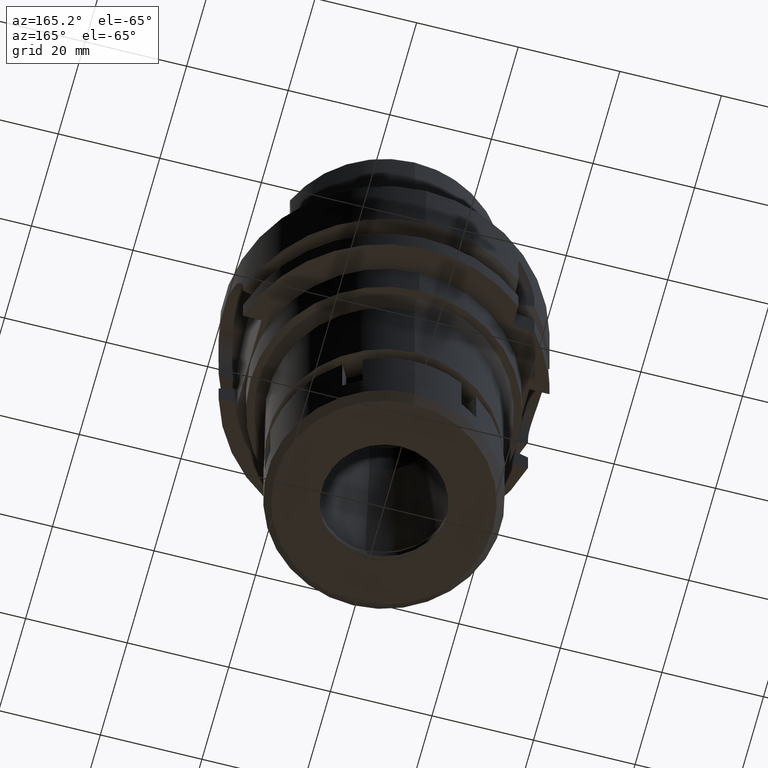
[diagram: clean part render]
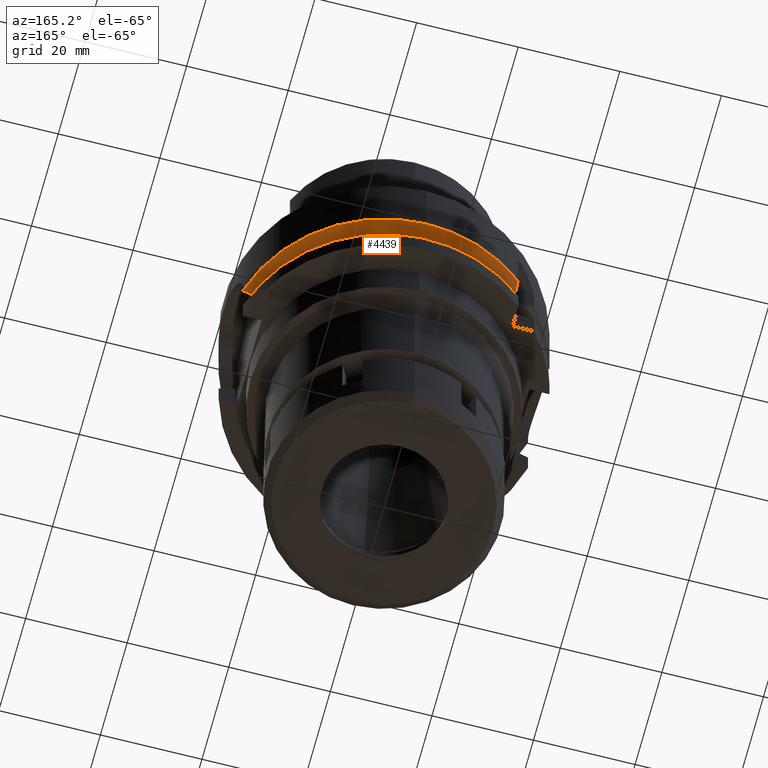
[diagram: same view with one face highlighted and labeled with its STEP entity id]
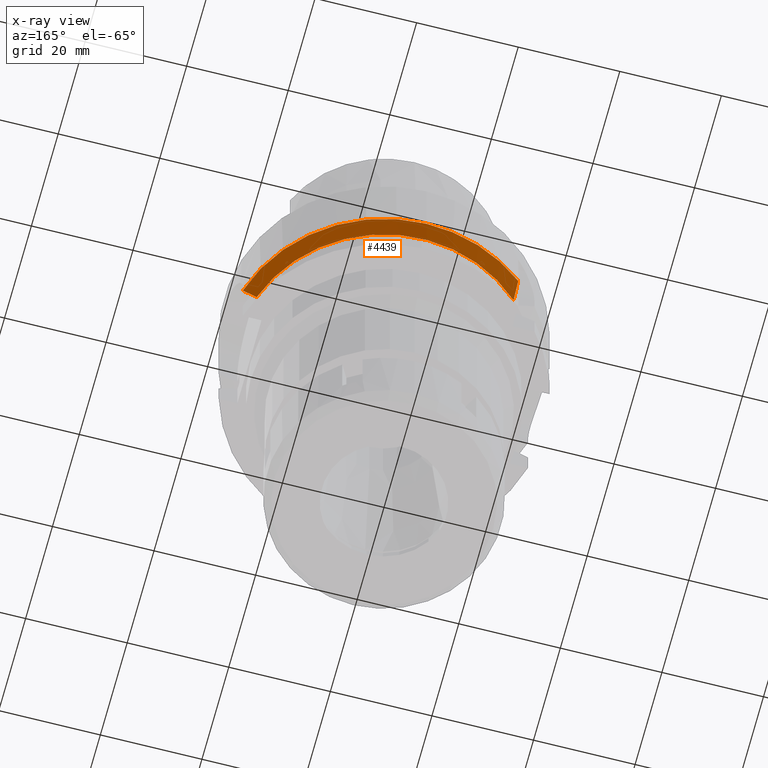
[diagram: x-ray of the same camera — body ghosted, the highlighted face saturated]
A machine part, auxiliary view. The second image highlights one B-rep face of the part: STEP entity #4439.
The next image is the same camera in x-ray: the body ghosted, the highlighted face saturated — about 0% of this face is hidden behind the body in this view.
In plain terms, the highlighted conical surface has half-angle 60 deg.
Its self-contained STEP definition (entity closure, byte-faithful):
#234 = B_SPLINE_CURVE_WITH_KNOTS ( 'NONE', 3,
 ( #1630, #4959, #622, #1601, #2548, #4484 ),
 .UNSPECIFIED., .F., .F.,
 ( 4, 1, 1, 4 ),
 ( 0.0000000000000000000, 0.3333333333333000081, 0.6666666666667000474, 1.000000000000000000 ),
 .UNSPECIFIED. ) ;
#282 = CARTESIAN_POINT ( 'NONE',  ( -20.00000808210187841, 21.97726579126707236, -15.65871069883595368 ) ) ;
#314 = EDGE_CURVE ( 'NONE', #1961, #1461, #1474, .T. ) ;
#330 = DIRECTION ( 'NONE',  ( 0.9583148474999051425, 0.2857142857143015191, 0.0000000000000000000 ) ) ;
#514 = ORIENTED_EDGE ( 'NONE', *, *, #2422, .T. ) ;
#555 = CIRCLE ( 'NONE', #1361, 31.49999999999999645 ) ;
#557 = AXIS2_PLACEMENT_3D ( 'NONE', #5446, #1102, #1609 ) ;
#622 = CARTESIAN_POINT ( 'NONE',  ( 28.35117163610999924, 8.999999995092000660, -15.63575894104000241 ) ) ;
#708 = DIRECTION ( 'NONE',  ( 0.0000000000000000000, 1.000000000000000000, 0.0000000000000000000 ) ) ;
#1102 = DIRECTION ( 'NONE',  ( 0.0000000000000000000, 0.0000000000000000000, 1.000000000000000000 ) ) ;
#1361 = AXIS2_PLACEMENT_3D ( 'NONE', #2189, #4130, #330 ) ;
#1461 = VERTEX_POINT ( 'NONE', #5314 ) ;
#1474 = CIRCLE ( 'NONE', #5220, 31.50000000000000000 ) ;
#1514 = B_SPLINE_CURVE_WITH_KNOTS ( 'NONE', 3,
 ( #4614, #282, #4147, #3660 ),
 .UNSPECIFIED., .F., .F.,
 ( 4, 4 ),
 ( 0.0000000000000000000, 1.000000000000000000 ),
 .UNSPECIFIED. ) ;
#1601 = CARTESIAN_POINT ( 'NONE',  ( 29.26001906976000200, 8.999999703813001517, -15.13490862518000135 ) ) ;
#1609 = DIRECTION ( 'NONE',  ( 0.0000000000000000000, 1.000000000000000000, 0.0000000000000000000 ) ) ;
#1628 = CARTESIAN_POINT ( 'NONE',  ( 0.0000000000000000000, 0.0000000000000000000, -14.62250092523999889 ) ) ;
#1630 = CARTESIAN_POINT ( 'NONE',  ( 27.46035056322000045, 9.000000208911000499, -16.12500000000000000 ) ) ;
#1787 = EDGE_CURVE ( 'NONE', #5918, #5538, #5992, .T. ) ;
#1961 = VERTEX_POINT ( 'NONE', #2671 ) ;
#1969 = CARTESIAN_POINT ( 'NONE',  ( 30.18691748922999807, 9.000000694375000165, -14.62249532487000003 ) ) ;
#2189 = CARTESIAN_POINT ( 'NONE',  ( 0.0000000000000000000, 0.0000000000000000000, -14.62250092523999889 ) ) ;
#2203 = DIRECTION ( 'NONE',  ( 0.0000000000000000000, 0.0000000000000000000, 1.000000000000000000 ) ) ;
#2308 = EDGE_CURVE ( 'NONE', #5918, #2795, #234, .T. ) ;
#2422 = EDGE_CURVE ( 'NONE', #5538, #1461, #1514, .T. ) ;
#2548 = CARTESIAN_POINT ( 'NONE',  ( 29.87622542883000065, 9.000000694375000165, -14.79439606072000046 ) ) ;
#2671 = CARTESIAN_POINT ( 'NONE',  ( 0.0000000000000000000, 31.50000000000000000, -14.62250092523999889 ) ) ;
#2795 = VERTEX_POINT ( 'NONE', #1969 ) ;
#2882 = CONICAL_SURFACE ( 'NONE', #557, 30.19879763209999979, 1.047197551196400456 ) ;
#3031 = ORIENTED_EDGE ( 'NONE', *, *, #4148, .F. ) ;
#3053 = AXIS2_PLACEMENT_3D ( 'NONE', #4443, #3498, #708 ) ;
#3498 = DIRECTION ( 'NONE',  ( 0.0000000000000000000, 0.0000000000000000000, 1.000000000000000000 ) ) ;
#3660 = CARTESIAN_POINT ( 'NONE',  ( -20.00001377493000021, 24.33617572673000140, -14.62245154170999939 ) ) ;
#3892 = EDGE_LOOP ( 'NONE', ( #5974, #3031, #4726, #4940, #514 ) ) ;
#4130 = DIRECTION ( 'NONE',  ( 0.0000000000000000000, 0.0000000000000000000, 1.000000000000000000 ) ) ;
#4147 = CARTESIAN_POINT ( 'NONE',  ( -20.00002748883304093, 23.13591286296415817, -15.15787019954225556 ) ) ;
#4148 = EDGE_CURVE ( 'NONE', #2795, #1961, #555, .T. ) ;
#4439 = ADVANCED_FACE ( 'NONE', ( #4461 ), #2882, .T. ) ;
#4443 = CARTESIAN_POINT ( 'NONE',  ( 0.0000000000000000000, 0.0000000000000000000, -16.12500000000000000 ) ) ;
#4461 = FACE_OUTER_BOUND ( 'NONE', #3892, .T. ) ;
#4484 = CARTESIAN_POINT ( 'NONE',  ( 30.18691748922999807, 9.000000694375000165, -14.62249532487000003 ) ) ;
#4495 = CARTESIAN_POINT ( 'NONE',  ( -20.00000400335999728, 20.85831984813000162, -16.12500000000000000 ) ) ;
#4546 = DIRECTION ( 'NONE',  ( 0.0000000000000000000, 1.000000000000000000, 0.0000000000000000000 ) ) ;
#4614 = CARTESIAN_POINT ( 'NONE',  ( -20.00000400335999728, 20.85831984813000162, -16.12500000000000000 ) ) ;
#4726 = ORIENTED_EDGE ( 'NONE', *, *, #2308, .F. ) ;
#4940 = ORIENTED_EDGE ( 'NONE', *, *, #1787, .T. ) ;
#4959 = CARTESIAN_POINT ( 'NONE',  ( 27.75557882461999881, 9.000000208911000499, -15.96302733895999992 ) ) ;
#5220 = AXIS2_PLACEMENT_3D ( 'NONE', #1628, #2203, #4546 ) ;
#5314 = CARTESIAN_POINT ( 'NONE',  ( -20.00001377493000021, 24.33617572673000140, -14.62245154170999939 ) ) ;
#5320 = CARTESIAN_POINT ( 'NONE',  ( 27.46035056322000045, 9.000000208911000499, -16.12500000000000000 ) ) ;
#5446 = CARTESIAN_POINT ( 'NONE',  ( 0.0000000000000000000, 0.0000000000000000000, -15.37375046262000033 ) ) ;
#5538 = VERTEX_POINT ( 'NONE', #4495 ) ;
#5918 = VERTEX_POINT ( 'NONE', #5320 ) ;
#5974 = ORIENTED_EDGE ( 'NONE', *, *, #314, .F. ) ;
#5992 = CIRCLE ( 'NONE', #3053, 28.89759526419000224 ) ;